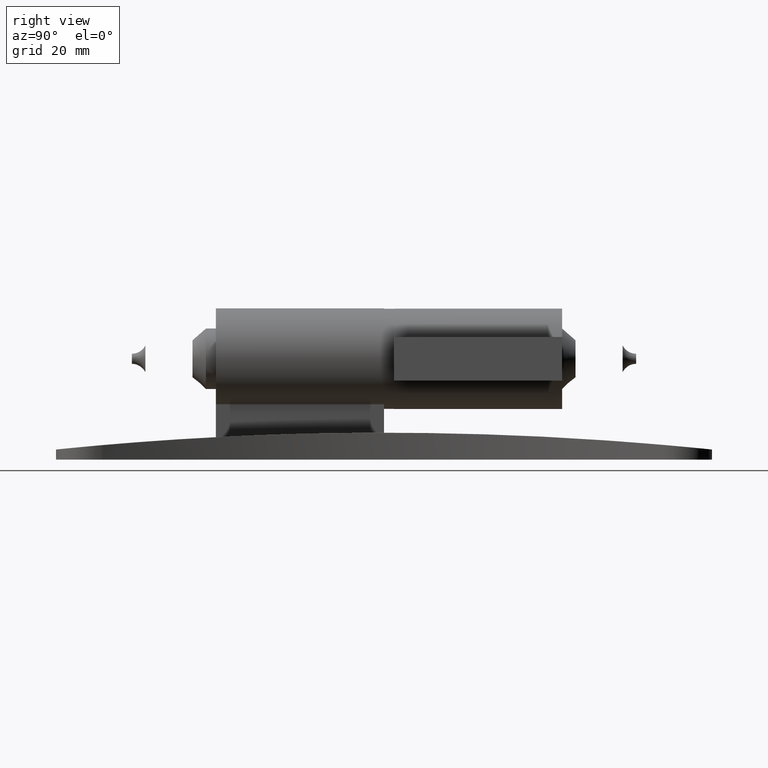
[diagram: clean part render]
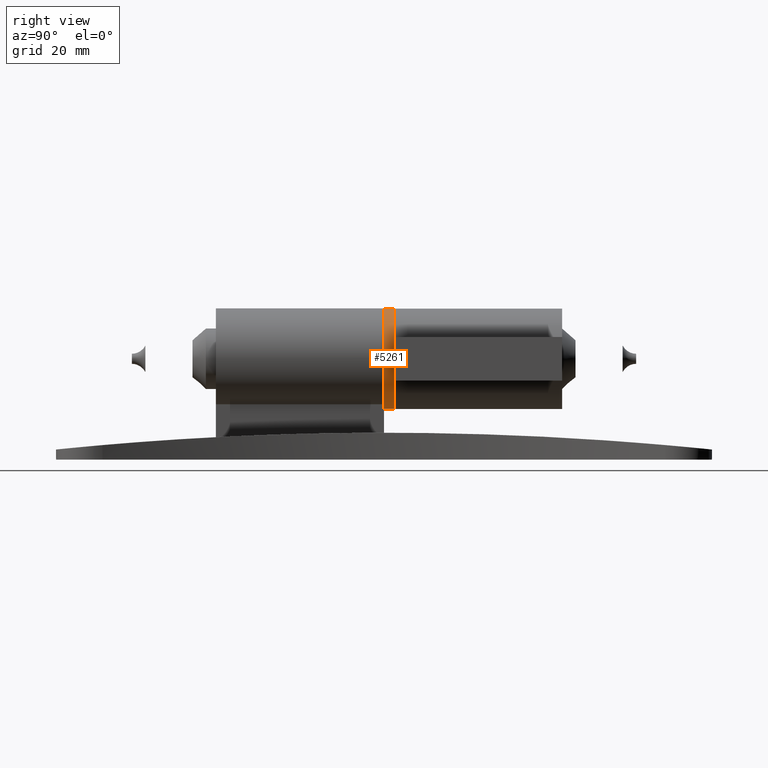
[diagram: same view with one face highlighted and labeled with its STEP entity id]
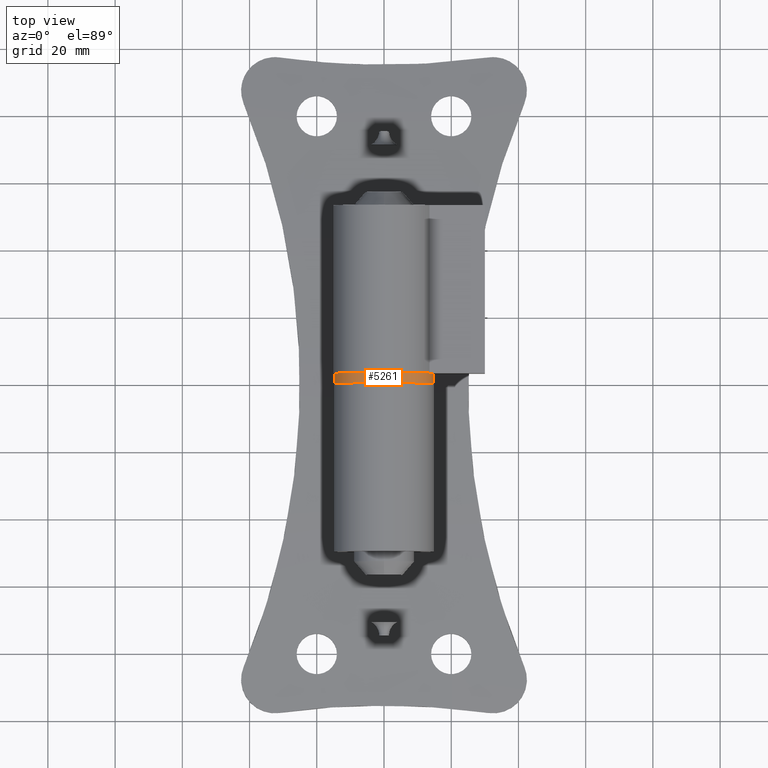
[diagram: same view with one face highlighted and labeled with its STEP entity id]
A machine part, right view. The second image highlights one B-rep face of the part: STEP entity #5261.
A second angle (top view) of the same face is appended — the face is thin or edge-on in the first view.
In plain terms, the highlighted cylindrical surface (bore or boss wall) has radius 14.9 mm, axis along (-0, -1, -0).
Its self-contained STEP definition (entity closure, byte-faithful):
#1588 = DIRECTION ( 'NONE',  ( 0.000000000000000000, 1.000000000000000000, 0.000000000000000000 ) ) ;
#1813 = CARTESIAN_POINT ( 'NONE',  ( 0.000000000000000000, 3.000000000000000000, 14.90000000000000036 ) ) ;
#2264 = DIRECTION ( 'NONE',  ( -0.000000000000000000, -1.000000000000000000, -0.000000000000000000 ) ) ;
#2673 = AXIS2_PLACEMENT_3D ( 'NONE', #6036, #9640, #9759 ) ;
#2691 = CYLINDRICAL_SURFACE ( 'NONE', #10404, 14.90000000000000036 ) ;
#3163 = VERTEX_POINT ( 'NONE', #8130 ) ;
#3255 = CIRCLE ( 'NONE', #2673, 14.90000000000000036 ) ;
#3261 = DIRECTION ( 'NONE',  ( 0.000000000000000000, 0.000000000000000000, -1.000000000000000000 ) ) ;
#4870 = ORIENTED_EDGE ( 'NONE', *, *, #8355, .T. ) ;
#4941 = CARTESIAN_POINT ( 'NONE',  ( 0.000000000000000000, 3.000000000000000000, 0.000000000000000000 ) ) ;
#5228 = FACE_OUTER_BOUND ( 'NONE', #8747, .T. ) ;
#5261 = ADVANCED_FACE ( 'NONE', ( #5228, #7193 ), #2691, .T. ) ;
#5632 = CIRCLE ( 'NONE', #9416, 14.90000000000000036 ) ;
#6036 = CARTESIAN_POINT ( 'NONE',  ( 0.000000000000000000, 3.000000000000000000, 0.000000000000000000 ) ) ;
#6181 = CARTESIAN_POINT ( 'NONE',  ( 0.000000000000000000, 0.000000000000000000, 0.000000000000000000 ) ) ;
#6494 = ORIENTED_EDGE ( 'NONE', *, *, #7982, .F. ) ;
#7193 = FACE_OUTER_BOUND ( 'NONE', #7801, .T. ) ;
#7801 = EDGE_LOOP ( 'NONE', ( #4870 ) ) ;
#7982 = EDGE_CURVE ( 'NONE', #10815, #10815, #3255, .T. ) ;
#8130 = CARTESIAN_POINT ( 'NONE',  ( 0.000000000000000000, 0.000000000000000000, 14.90000000000000036 ) ) ;
#8355 = EDGE_CURVE ( 'NONE', #3163, #3163, #5632, .T. ) ;
#8747 = EDGE_LOOP ( 'NONE', ( #6494 ) ) ;
#9416 = AXIS2_PLACEMENT_3D ( 'NONE', #6181, #1588, #10644 ) ;
#9640 = DIRECTION ( 'NONE',  ( 0.000000000000000000, 1.000000000000000000, 0.000000000000000000 ) ) ;
#9759 = DIRECTION ( 'NONE',  ( 0.000000000000000000, 0.000000000000000000, 1.000000000000000000 ) ) ;
#10404 = AXIS2_PLACEMENT_3D ( 'NONE', #4941, #2264, #3261 ) ;
#10644 = DIRECTION ( 'NONE',  ( 0.000000000000000000, 0.000000000000000000, 1.000000000000000000 ) ) ;
#10815 = VERTEX_POINT ( 'NONE', #1813 ) ;